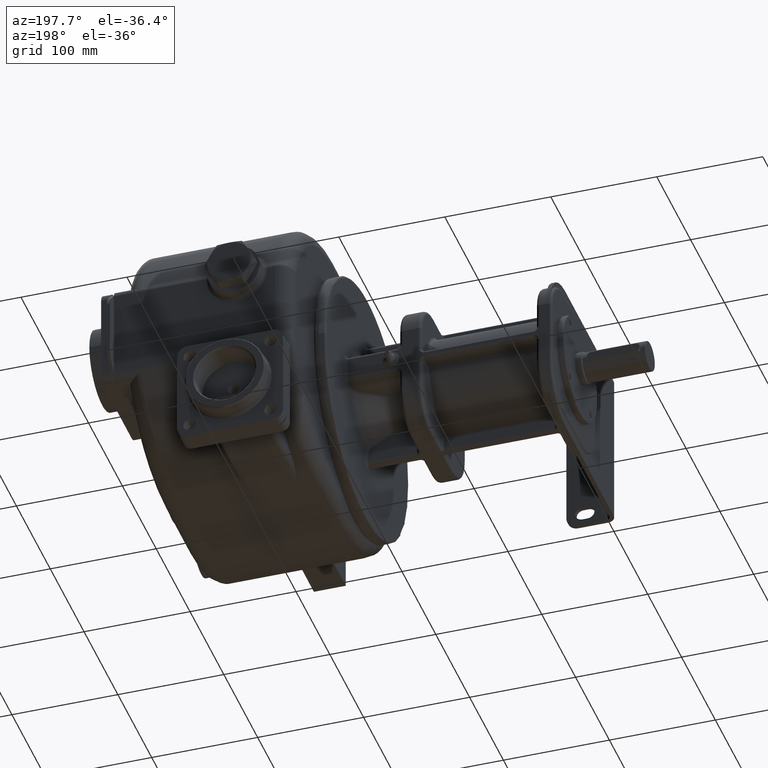
[diagram: clean part render]
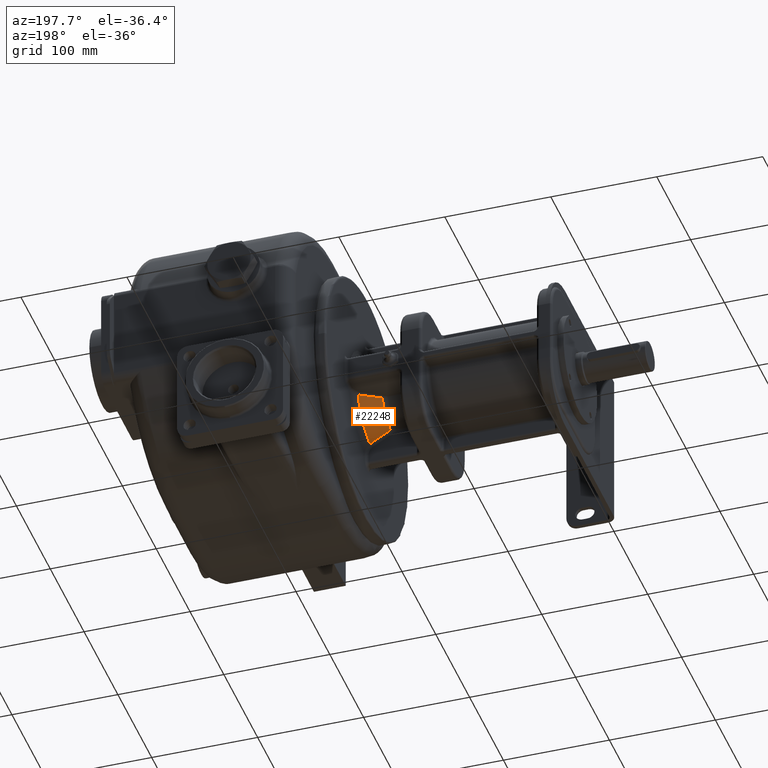
[diagram: same view with one face highlighted and labeled with its STEP entity id]
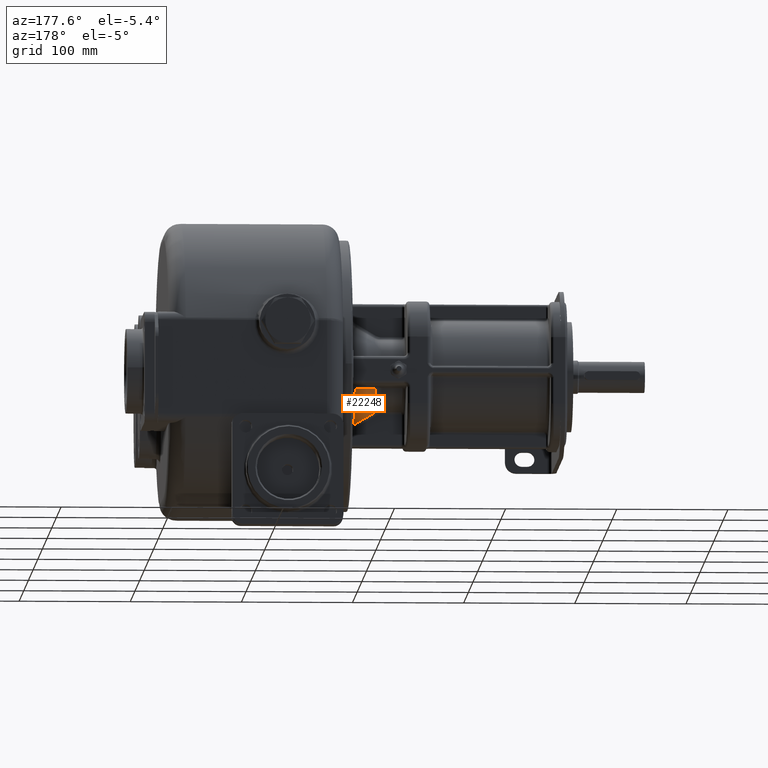
[diagram: same view with one face highlighted and labeled with its STEP entity id]
A machine part, auxiliary view. The second image highlights one B-rep face of the part: STEP entity #22248.
A second angle (auxiliary view) of the same face is appended — the face is thin or edge-on in the first view.
In plain terms, the highlighted conical surface has half-angle 30 deg.
Its self-contained STEP definition (entity closure, byte-faithful):
#7832=CARTESIAN_POINT('',(-1.015000002865E2,1.394373083063E2,
-3.352468690368E1));
#7833=CARTESIAN_POINT('',(-1.002103680960E2,1.394486506945E2,
-3.428484229695E1));
#7834=CARTESIAN_POINT('',(-9.749212305264E1,1.394711768474E2,
-3.588525463814E1));
#7835=CARTESIAN_POINT('',(-9.302011909089E1,1.395038538889E2,
-3.851242126443E1));
#7836=CARTESIAN_POINT('',(-8.808448118815E1,1.395355487208E2,
-4.140613608068E1));
#7837=CARTESIAN_POINT('',(-8.442027084529E1,1.395561110744E2,
-4.355044823726E1));
#7838=CARTESIAN_POINT('',(-8.250000044335E1,1.395661511579E2,
-4.467320508052E1));
#7840=CARTESIAN_POINT('',(-8.25E1,1.32E2,0.E0));
#7841=DIRECTION('',(-1.E0,0.E0,0.E0));
#7842=DIRECTION('',(0.E0,9.462143882453E-1,-3.235403088913E-1));
#7843=AXIS2_PLACEMENT_3D('',#7840,#7841,#7842);
#7845=CARTESIAN_POINT('',(-8.250000043642E1,1.748724079368E2,
-1.465941786460E1));
#7846=CARTESIAN_POINT('',(-8.389240714379E1,1.740276285713E2,
-1.464531241321E1));
#7847=CARTESIAN_POINT('',(-8.655511264217E1,1.724078980989E2,
-1.461691586875E1));
#7848=CARTESIAN_POINT('',(-9.018373346821E1,1.701887196680E2,
-1.457428287851E1));
#7849=CARTESIAN_POINT('',(-9.344971624628E1,1.681800582568E2,
-1.453222668986E1));
#7850=CARTESIAN_POINT('',(-9.638467716279E1,1.663644784215E2,
-1.449104707001E1));
#7851=CARTESIAN_POINT('',(-9.905141310653E1,1.647049864869E2,
-1.445049116413E1));
#7852=CARTESIAN_POINT('',(-1.007071608293E2,1.636681666624E2,
-1.442329521984E1));
#7853=CARTESIAN_POINT('',(-1.015000003194E2,1.631701185564E2,
-1.440978486737E1));
#7855=CARTESIAN_POINT('',(-1.015E2,1.32E2,0.E0));
#7856=DIRECTION('',(-1.E0,0.E0,0.E0));
#7857=DIRECTION('',(0.E0,9.076979803097E-1,-4.196240895630E-1));
#7858=AXIS2_PLACEMENT_3D('',#7855,#7856,#7857);
#12839=VERTEX_POINT('',#7832);
#12840=VERTEX_POINT('',#7838);
#12871=VERTEX_POINT('',#7845);
#12872=VERTEX_POINT('',#7853);
#22235=CARTESIAN_POINT('',(-9.2E1,1.32E2,0.E0));
#22236=DIRECTION('',(1.E0,0.E0,0.E0));
#22237=DIRECTION('',(0.E0,-1.E0,0.E0));
#22238=AXIS2_PLACEMENT_3D('',#22235,#22236,#22237);
#22239=CONICAL_SURFACE('',#22238,3.982457351946E1,3.E1);
#22240=ORIENTED_EDGE('',*,*,#22226,.T.);
#22242=ORIENTED_EDGE('',*,*,#22241,.F.);
#22244=ORIENTED_EDGE('',*,*,#22243,.T.);
#22245=ORIENTED_EDGE('',*,*,#22124,.T.);
#22246=EDGE_LOOP('',(#22240,#22242,#22244,#22245));
#22247=FACE_OUTER_BOUND('',#22246,.F.);
#22248=ADVANCED_FACE('',(#22247),#22239,.T.);
#7839=B_SPLINE_CURVE_WITH_KNOTS('',3,(#7832,#7833,#7834,#7835,#7836,#7837,
#7838),.UNSPECIFIED.,.F.,.F.,(4,1,1,1,4),(0.E0,2.5E-1,5.E-1,7.5E-1,1.E0),
.UNSPECIFIED.);
#7844=CIRCLE('',#7843,4.530940107676E1);
#7854=B_SPLINE_CURVE_WITH_KNOTS('',3,(#7845,#7846,#7847,#7848,#7849,#7850,#7851,
#7852,#7853),.UNSPECIFIED.,.F.,.F.,(4,1,1,1,1,1,4),(0.E0,1.666666666667E-1,
3.333333333333E-1,5.E-1,6.666666666667E-1,8.333333333333E-1,1.E0),
.UNSPECIFIED.);
#7859=CIRCLE('',#7858,3.433974596216E1);
#22124=EDGE_CURVE('',#12872,#12839,#7859,.T.);
#22226=EDGE_CURVE('',#12839,#12840,#7839,.T.);
#22241=EDGE_CURVE('',#12871,#12840,#7844,.T.);
#22243=EDGE_CURVE('',#12871,#12872,#7854,.T.);